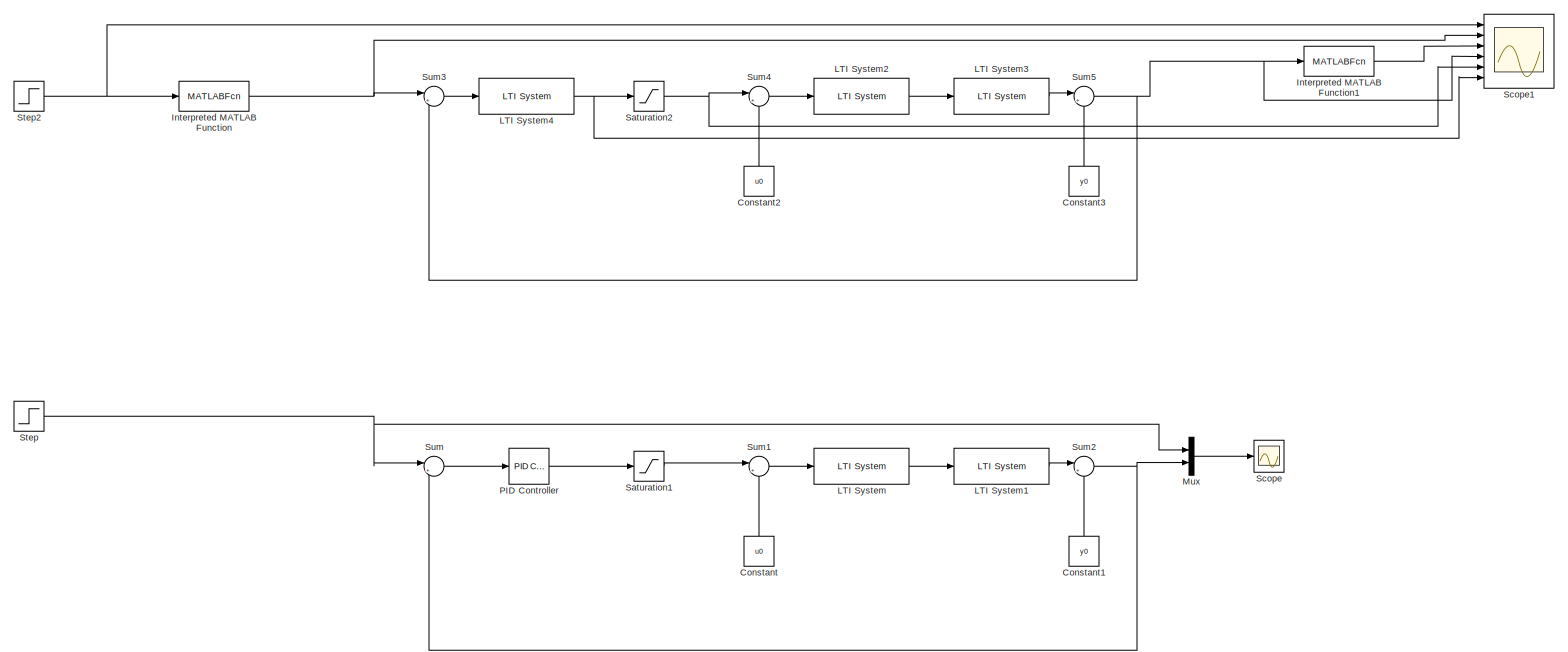
[diagram: root canvas - part 1/1, most of the canvas]
MODEL slx_05bcc024f966
KIND model
CONFIG AbsTol = auto
CONFIG EnableMultiTasking = off
CONFIG FixedStep = auto
CONFIG MaxStep = auto
CONFIG MinStep = auto
CONFIG RelTol = 1e-3
CONFIG SampleTimeConstraint = Unconstrained
CONFIG SolverName = VariableStepAuto
CONFIG StartTime = 0.0
CONFIG StopTime = 400.0
BLOCK [Constant] Constant
  NameLocation = right
  Value = u0
BLOCK [Constant] Constant1
  NameLocation = right
  Value = y0
BLOCK [Constant] Constant2
  NameLocation = right
  Value = u0
BLOCK [Constant] Constant3
  NameLocation = right
  Value = y0
BLOCK [MATLABFcn] Interpreted MATLAB Function
  MATLABFcn = celsius_to_raw
  Ports = [1, 1]
BLOCK [MATLABFcn] Interpreted MATLAB Function1
  MATLABFcn = raw_to_celsius
  Ports = [1, 1]
BLOCK [Reference] LTI System  REF=cstblocks/LTI System
  Ports = [1, 1]
  SourceBlock = cstblocks/LTI System
  SourceProductBaseCode = CT
  SourceType = LTI Block
BLOCK [Reference] LTI System1  REF=cstblocks/LTI System
  Ports = [1, 1]
  SourceBlock = cstblocks/LTI System
  SourceProductBaseCode = CT
  SourceType = LTI Block
BLOCK [Reference] LTI System2  REF=cstblocks/LTI System
  Ports = [1, 1]
  SourceBlock = cstblocks/LTI System
  SourceProductBaseCode = CT
  SourceType = LTI Block
BLOCK [Reference] LTI System3  REF=cstblocks/LTI System
  Ports = [1, 1]
  SourceBlock = cstblocks/LTI System
  SourceProductBaseCode = CT
  SourceType = LTI Block
BLOCK [Reference] LTI System4  REF=cstblocks/LTI System
  Ports = [1, 1]
  SourceBlock = cstblocks/LTI System
  SourceProductBaseCode = CT
  SourceType = LTI Block
BLOCK [Mux] Mux
  DisplayOption = bar
  Inputs = 2
  Ports = [2, 1]
BLOCK [Reference] PID Controller  REF=slpidlib/PID Controller
  Ports = [1, 1]
  SourceBlock = slpidlib/PID Controller
  SourceProductBaseCode = SL
  SourceType = PID 1dof
BLOCK [Saturate] Saturation1
  LowerLimit = 32786
  UpperLimit = 65535
BLOCK [Saturate] Saturation2
  LowerLimit = 32786
  UpperLimit = 65535
BLOCK [Scope] Scope
  Floating = off
  NumInputPorts = 1
  Ports = [1]
  ScopeSpecificationString = Simulink.scopes.TimeScopeBlockCfg('CurrentConfiguration', extmgr.ConfigurationSet(extmgr.Configuration('Core','General UI',true),extmgr.Configuration('Core','Source UI',true),extmgr.Configuration('Sources','WiredSimulink',true),extmgr.Configuration('Visuals','Time Domain',true,'SerializedDisplays',{struct('MinYLimReal','-12951.72087','MaxYLimReal','51055.48787','YLabelReal','','MinYLimMag','   0.0...<+1434ch>
BLOCK [Scope] Scope1
  Floating = off
  NumInputPorts = 6
  Ports = [6]
  ScopeSpecificationString = Simulink.scopes.TimeScopeBlockCfg('CurrentConfiguration', extmgr.ConfigurationSet(extmgr.Configuration('Core','General UI',true),extmgr.Configuration('Core','Source UI',true),extmgr.Configuration('Sources','WiredSimulink',true,'DataLoggingVariableName','ScopeData1'),extmgr.Configuration('Visuals','Time Domain',true,'SerializedDisplays',{struct('MinYLimReal','-0.375','MaxYLimReal','3.375','YLabelRe...<+5063ch>
BLOCK [Step] Step
  After = -6551
  SampleTime = 0
  Time = 10
BLOCK [Step] Step2
  After = 3
  SampleTime = 0
  Time = 10
BLOCK [Sum] Sum
  Inputs = |+-
  Ports = [2, 1]
BLOCK [Sum] Sum1
  Inputs = |+-
  Ports = [2, 1]
BLOCK [Sum] Sum2
  Inputs = |++
  Ports = [2, 1]
BLOCK [Sum] Sum3
  Inputs = |+-
  Ports = [2, 1]
BLOCK [Sum] Sum4
  Inputs = |+-
  Ports = [2, 1]
BLOCK [Sum] Sum5
  Inputs = |++
  Ports = [2, 1]
LINE Constant1:1 -> Sum2:2
LINE Constant2:1 -> Sum4:2
LINE Constant3:1 -> Sum5:2
LINE Constant:1 -> Sum1:2
LINE Interpreted MATLAB Function1:1 -> Scope1:3
NET Interpreted MATLAB Function:1 -> Scope1:2, Sum3:1
LINE LTI System1:1 -> Sum2:1
LINE LTI System2:1 -> LTI System3:1
LINE LTI System3:1 -> Sum5:1
NET LTI System4:1 -> Saturation2:1, Scope1:6
LINE LTI System:1 -> LTI System1:1
LINE Mux:1 -> Scope:1
LINE PID Controller:1 -> Saturation1:1
LINE Saturation1:1 -> Sum1:1
NET Saturation2:1 -> Scope1:5, Sum4:1
NET Step2:1 -> Interpreted MATLAB Function:1, Scope1:1
NET Step:1 -> Mux:1, Sum:1
LINE Sum1:1 -> LTI System:1
NET Sum2:1 -> Mux:2, Sum:2
LINE Sum3:1 -> LTI System4:1
LINE Sum4:1 -> LTI System2:1
NET Sum5:1 -> Interpreted MATLAB Function1:1, Scope1:4, Sum3:2
LINE Sum:1 -> PID Controller:1
note: NET lines group one-source signal fan-out (src -> all destinations, sorted); 1:1 wires keep LINE
